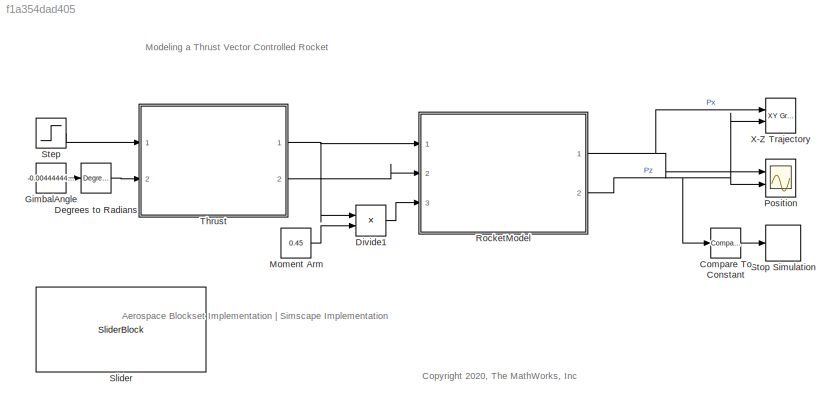
MODEL slx_f1a354dad405
KIND model
CONFIG AbsTol = auto
CONFIG EnableMultiTasking = off
CONFIG FixedStep = auto
CONFIG MaxStep = auto
CONFIG MinStep = auto
CONFIG PostLoadFcn = VSS_MODE = 0;
CONFIG RelTol = 1e-3
CONFIG SampleTimeConstraint = Unconstrained
CONFIG SolverName = VariableStepAuto
CONFIG StartTime = 0.0
CONFIG StopTime = 10
BLOCK [Reference] Compare To Constant  REF=simulink/Logic and Bit
Operations/Compare
To Constant
  Ports = [1, 1]
  SourceBlock = simulink/Logic and Bit\nOperations/Compare\nTo Constant
  SourceProductBaseCode = SL
  SourceType = Compare To Constant
BLOCK [Reference] Degrees to Radians  REF=simulink_extras/Transformations/Degrees to
Radians
  Ports = [1, 1]
  SourceBlock = simulink_extras/Transformations/Degrees to\nRadians
  SourceProductBaseCode = SL
  SourceType = DegreesToRadians
BLOCK [Product] Divide1
  Inputs = **
  Ports = [2, 1]
BLOCK [Constant] GimbalAngle
  Value = -0.004444444444444473
BLOCK [Constant] Moment Arm 
  Value = 0.45
BLOCK [Scope] Position
  Floating = off
  NumInputPorts = 2
  Ports = [2]
  ScopeSpecificationString = Simulink.scopes.TimeScopeBlockCfg('CurrentConfiguration', extmgr.ConfigurationSet(extmgr.Configuration('Core','General UI',true),extmgr.Configuration('Core','Source UI',true),extmgr.Configuration('Sources','WiredSimulink',true,'DataLoggingVariableName','ScopeData2'),extmgr.Configuration('Visuals','Time Domain',true,'SerializedDisplays',{struct('MinYLimReal','-2.63498','MaxYLimReal','23.71478','YLa...<+2088ch>
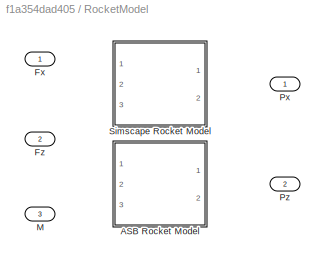
BLOCK [SubSystem] RocketModel
  Ports = [3, 2]
  RequestExecContextInheritance = off
  Variant = on
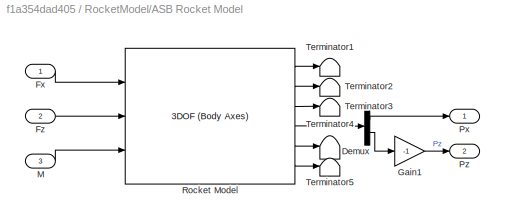
BLOCK [SubSystem] RocketModel/ASB Rocket Model
  Ports = [3, 2]
  RequestExecContextInheritance = off
  VariantControl = VSS_MODE == 0
BLOCK [Demux] RocketModel/ASB Rocket Model/Demux
  Outputs = 2
  Ports = [1, 2]
BLOCK [Inport] RocketModel/ASB Rocket Model/Fx
BLOCK [Inport] RocketModel/ASB Rocket Model/Fz
  Port = 2
BLOCK [Gain] RocketModel/ASB Rocket Model/Gain1
  Gain = -1
BLOCK [Inport] RocketModel/ASB Rocket Model/M
  Port = 3
BLOCK [Outport] RocketModel/ASB Rocket Model/Px
BLOCK [Outport] RocketModel/ASB Rocket Model/Pz
  Port = 2
BLOCK [Reference] RocketModel/ASB Rocket Model/Rocket Model  REF=shared3dof/3DOF (Body Axes)
  Ports = [3, 6]
  SourceBlock = shared3dof/3DOF (Body Axes)
  SourceProductBaseCode = AE,PW,MT,UV,VE,VP
  SourceType = 3DOF EoM
BLOCK [Terminator] RocketModel/ASB Rocket Model/Terminator1
BLOCK [Terminator] RocketModel/ASB Rocket Model/Terminator2
BLOCK [Terminator] RocketModel/ASB Rocket Model/Terminator3
BLOCK [Terminator] RocketModel/ASB Rocket Model/Terminator4
BLOCK [Terminator] RocketModel/ASB Rocket Model/Terminator5
BLOCK [Inport] RocketModel/Fx 
BLOCK [Inport] RocketModel/Fz
  Port = 2
BLOCK [Inport] RocketModel/M
  Port = 3
BLOCK [Outport] RocketModel/Px
BLOCK [Outport] RocketModel/Pz 
  Port = 2
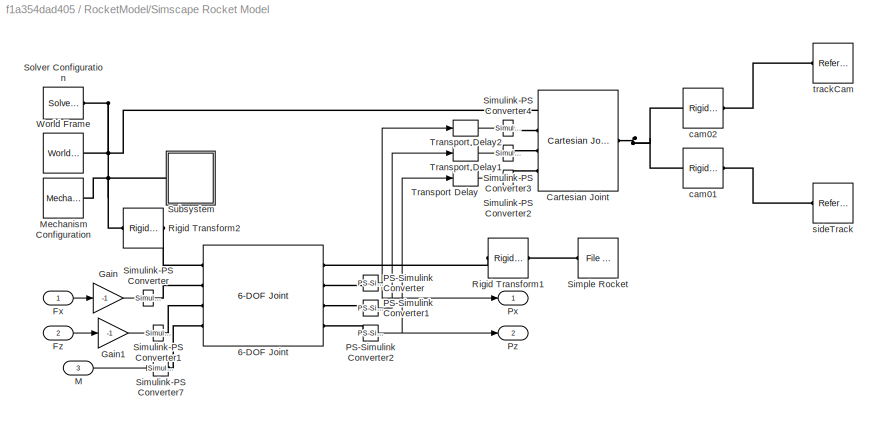
BLOCK [SubSystem] RocketModel/Simscape Rocket Model
  Ports = [3, 2]
  RequestExecContextInheritance = off
  VariantControl = VSS_MODE == 1
BLOCK [Reference] RocketModel/Simscape Rocket Model/6-DOF Joint  REF=sm_lib/Joints/6-DOF Joint
  Ports = [0, 0, 0, 0, 0, 4, 4]
  SourceBlock = sm_lib/Joints/6-DOF Joint
  SourceProductBaseCode = MS
  SourceType = 6-DOF Joint
BLOCK [Reference] RocketModel/Simscape Rocket Model/Cartesian Joint  REF=sm_lib/Joints/Cartesian
Joint
  Ports = [0, 0, 0, 0, 0, 4, 1]
  SourceBlock = sm_lib/Joints/Cartesian\nJoint
  SourceProductBaseCode = MS
  SourceType = Cartesian\nJoint
BLOCK [Inport] RocketModel/Simscape Rocket Model/Fx
BLOCK [Inport] RocketModel/Simscape Rocket Model/Fz
  Port = 2
BLOCK [Gain] RocketModel/Simscape Rocket Model/Gain
  Gain = -1
BLOCK [Gain] RocketModel/Simscape Rocket Model/Gain1
  Gain = -1
BLOCK [Inport] RocketModel/Simscape Rocket Model/M
  Port = 3
BLOCK [Reference] RocketModel/Simscape Rocket Model/Mechanism Configuration  REF=sm_lib/Utilities/Mechanism
Configuration
  Ports = [0, 0, 0, 0, 0, 0, 1]
  SourceBlock = sm_lib/Utilities/Mechanism\nConfiguration
  SourceProductBaseCode = MS
  SourceType = Mechanism\nConfiguration
BLOCK [Reference] RocketModel/Simscape Rocket Model/PS-Simulink Converter  REF=nesl_utility/PS-Simulink
Converter
  Ports = [0, 1, 0, 0, 0, 1]
  SourceBlock = nesl_utility/PS-Simulink\nConverter
  SourceProductBaseCode = SS
  SourceType = PS-Simulink\nConverter
BLOCK [Reference] RocketModel/Simscape Rocket Model/PS-Simulink Converter1  REF=nesl_utility/PS-Simulink
Converter
  Ports = [0, 1, 0, 0, 0, 1]
  SourceBlock = nesl_utility/PS-Simulink\nConverter
  SourceProductBaseCode = SS
  SourceType = PS-Simulink\nConverter
BLOCK [Reference] RocketModel/Simscape Rocket Model/PS-Simulink Converter2  REF=nesl_utility/PS-Simulink
Converter
  Ports = [0, 1, 0, 0, 0, 1]
  SourceBlock = nesl_utility/PS-Simulink\nConverter
  SourceProductBaseCode = SS
  SourceType = PS-Simulink\nConverter
BLOCK [Outport] RocketModel/Simscape Rocket Model/Px
BLOCK [Outport] RocketModel/Simscape Rocket Model/Pz
  Port = 2
BLOCK [Reference] RocketModel/Simscape Rocket Model/Rigid Transform1  REF=sm_lib/Frames and
Transforms/Rigid
Transform
  NameLocation = top
  Ports = [0, 0, 0, 0, 0, 1, 1]
  SourceBlock = sm_lib/Frames and\nTransforms/Rigid\nTransform
  SourceProductBaseCode = MS
  SourceType = Rigid\nTransform
BLOCK [Reference] RocketModel/Simscape Rocket Model/Rigid Transform2  REF=sm_lib/Frames and
Transforms/Rigid
Transform
  NameLocation = top
  Ports = [0, 0, 0, 0, 0, 1, 1]
  SourceBlock = sm_lib/Frames and\nTransforms/Rigid\nTransform
  SourceProductBaseCode = MS
  SourceType = Rigid\nTransform
BLOCK [Reference] RocketModel/Simscape Rocket Model/Simple Rocket  REF=sm_lib/Body Elements/File Solid
  NameLocation = top
  Ports = [0, 0, 0, 0, 0, 0, 1]
  SourceBlock = sm_lib/Body Elements/File Solid
  SourceProductBaseCode = MS
  SourceType = File Solid
BLOCK [Reference] RocketModel/Simscape Rocket Model/Simulink-PS Converter  REF=nesl_utility/Simulink-PS
Converter
  Ports = [1, 0, 0, 0, 0, 0, 1]
  SourceBlock = nesl_utility/Simulink-PS\nConverter
  SourceProductBaseCode = SS
  SourceType = Simulink-PS\nConverter
BLOCK [Reference] RocketModel/Simscape Rocket Model/Simulink-PS Converter1  REF=nesl_utility/Simulink-PS
Converter
  Ports = [1, 0, 0, 0, 0, 0, 1]
  SourceBlock = nesl_utility/Simulink-PS\nConverter
  SourceProductBaseCode = SS
  SourceType = Simulink-PS\nConverter
BLOCK [Reference] RocketModel/Simscape Rocket Model/Simulink-PS Converter2  REF=nesl_utility/Simulink-PS
Converter
  Ports = [1, 0, 0, 0, 0, 0, 1]
  SourceBlock = nesl_utility/Simulink-PS\nConverter
  SourceProductBaseCode = SS
  SourceType = Simulink-PS\nConverter
BLOCK [Reference] RocketModel/Simscape Rocket Model/Simulink-PS Converter3  REF=nesl_utility/Simulink-PS
Converter
  Ports = [1, 0, 0, 0, 0, 0, 1]
  SourceBlock = nesl_utility/Simulink-PS\nConverter
  SourceProductBaseCode = SS
  SourceType = Simulink-PS\nConverter
BLOCK [Reference] RocketModel/Simscape Rocket Model/Simulink-PS Converter4  REF=nesl_utility/Simulink-PS
Converter
  Ports = [1, 0, 0, 0, 0, 0, 1]
  SourceBlock = nesl_utility/Simulink-PS\nConverter
  SourceProductBaseCode = SS
  SourceType = Simulink-PS\nConverter
BLOCK [Reference] RocketModel/Simscape Rocket Model/Simulink-PS Converter7  REF=nesl_utility/Simulink-PS
Converter
  Ports = [1, 0, 0, 0, 0, 0, 1]
  SourceBlock = nesl_utility/Simulink-PS\nConverter
  SourceProductBaseCode = SS
  SourceType = Simulink-PS\nConverter
BLOCK [Reference] RocketModel/Simscape Rocket Model/Solver Configuration  REF=nesl_utility/Solver
Configuration
  Ports = [0, 0, 0, 0, 0, 0, 1]
  SourceBlock = nesl_utility/Solver\nConfiguration
  SourceProductBaseCode = SS
  SourceType = Solver\nConfiguration
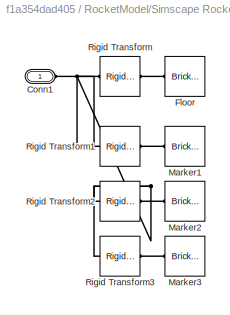
BLOCK [SubSystem] RocketModel/Simscape Rocket Model/Subsystem
  Ports = [0, 0, 0, 0, 0, 1]
  RequestExecContextInheritance = off
BLOCK [PMIOPort] RocketModel/Simscape Rocket Model/Subsystem/Conn1
  Side = Left
BLOCK [Reference] RocketModel/Simscape Rocket Model/Subsystem/Floor  REF=sm_lib/Body Elements/Brick Solid
  NameLocation = top
  Ports = [0, 0, 0, 0, 0, 0, 1]
  SourceBlock = sm_lib/Body Elements/Brick Solid
  SourceProductBaseCode = MS
  SourceType = Brick Solid
BLOCK [Reference] RocketModel/Simscape Rocket Model/Subsystem/Marker1  REF=sm_lib/Body Elements/Brick Solid
  NameLocation = top
  Ports = [0, 0, 0, 0, 0, 0, 1]
  SourceBlock = sm_lib/Body Elements/Brick Solid
  SourceProductBaseCode = MS
  SourceType = Brick Solid
BLOCK [Reference] RocketModel/Simscape Rocket Model/Subsystem/Marker2  REF=sm_lib/Body Elements/Brick Solid
  NameLocation = top
  Ports = [0, 0, 0, 0, 0, 0, 1]
  SourceBlock = sm_lib/Body Elements/Brick Solid
  SourceProductBaseCode = MS
  SourceType = Brick Solid
BLOCK [Reference] RocketModel/Simscape Rocket Model/Subsystem/Marker3  REF=sm_lib/Body Elements/Brick Solid
  NameLocation = top
  Ports = [0, 0, 0, 0, 0, 0, 1]
  SourceBlock = sm_lib/Body Elements/Brick Solid
  SourceProductBaseCode = MS
  SourceType = Brick Solid
BLOCK [Reference] RocketModel/Simscape Rocket Model/Subsystem/Rigid Transform  REF=sm_lib/Frames and
Transforms/Rigid
Transform
  Ports = [0, 0, 0, 0, 0, 1, 1]
  SourceBlock = sm_lib/Frames and\nTransforms/Rigid\nTransform
  SourceProductBaseCode = MS
  SourceType = Rigid\nTransform
BLOCK [Reference] RocketModel/Simscape Rocket Model/Subsystem/Rigid Transform1  REF=sm_lib/Frames and
Transforms/Rigid
Transform
  Ports = [0, 0, 0, 0, 0, 1, 1]
  SourceBlock = sm_lib/Frames and\nTransforms/Rigid\nTransform
  SourceProductBaseCode = MS
  SourceType = Rigid\nTransform
BLOCK [Reference] RocketModel/Simscape Rocket Model/Subsystem/Rigid Transform2  REF=sm_lib/Frames and
Transforms/Rigid
Transform
  Ports = [0, 0, 0, 0, 0, 1, 1]
  SourceBlock = sm_lib/Frames and\nTransforms/Rigid\nTransform
  SourceProductBaseCode = MS
  SourceType = Rigid\nTransform
BLOCK [Reference] RocketModel/Simscape Rocket Model/Subsystem/Rigid Transform3  REF=sm_lib/Frames and
Transforms/Rigid
Transform
  Ports = [0, 0, 0, 0, 0, 1, 1]
  SourceBlock = sm_lib/Frames and\nTransforms/Rigid\nTransform
  SourceProductBaseCode = MS
  SourceType = Rigid\nTransform
BLOCK [TransportDelay] RocketModel/Simscape Rocket Model/Transport Delay
  BufferSize = 100
  DelayTime = 0.01
  Ports = [1, 1]
BLOCK [TransportDelay] RocketModel/Simscape Rocket Model/Transport Delay1
  BufferSize = 100
  DelayTime = 0.01
  Ports = [1, 1]
BLOCK [TransportDelay] RocketModel/Simscape Rocket Model/Transport Delay2
  BufferSize = 100
  DelayTime = 0.01
  Ports = [1, 1]
BLOCK [Reference] RocketModel/Simscape Rocket Model/World Frame  REF=sm_lib/Frames and
Transforms/World Frame
  Ports = [0, 0, 0, 0, 0, 0, 1]
  SourceBlock = sm_lib/Frames and\nTransforms/World Frame
  SourceProductBaseCode = MS
  SourceType = World Frame
BLOCK [Reference] RocketModel/Simscape Rocket Model/cam01  REF=sm_lib/Frames and
Transforms/Rigid
Transform
  Ports = [0, 0, 0, 0, 0, 1, 1]
  SourceBlock = sm_lib/Frames and\nTransforms/Rigid\nTransform
  SourceProductBaseCode = MS
  SourceType = Rigid\nTransform
BLOCK [Reference] RocketModel/Simscape Rocket Model/cam02  REF=sm_lib/Frames and
Transforms/Rigid
Transform
  Ports = [0, 0, 0, 0, 0, 1, 1]
  SourceBlock = sm_lib/Frames and\nTransforms/Rigid\nTransform
  SourceProductBaseCode = MS
  SourceType = Rigid\nTransform
BLOCK [Reference] RocketModel/Simscape Rocket Model/sideTrack  REF=sm_lib/Frames and
Transforms/Reference
Frame
  Ports = [0, 0, 0, 0, 0, 0, 1]
  SourceBlock = sm_lib/Frames and\nTransforms/Reference\nFrame
  SourceProductName = Multibody
  SourceType = Reference\nFrame
BLOCK [Reference] RocketModel/Simscape Rocket Model/trackCam  REF=sm_lib/Frames and
Transforms/Reference
Frame
  Ports = [0, 0, 0, 0, 0, 0, 1]
  SourceBlock = sm_lib/Frames and\nTransforms/Reference\nFrame
  SourceProductName = Multibody
  SourceType = Reference\nFrame
BLOCK [SliderBlock] Slider
  ScaleMax = 1
  ScaleMin = -1
  TickInterval = 1
BLOCK [Step] Step
  After = 0
  Before = -15
  SampleTime = 0
  Time = 2
BLOCK [Stop] Stop Simulation
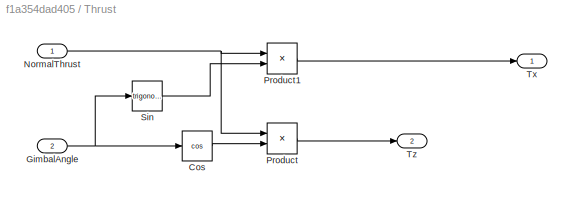
BLOCK [SubSystem] Thrust
  Ports = [2, 2]
  RequestExecContextInheritance = off
BLOCK [Trigonometry] Thrust/Cos
  Operator = cos
  Ports = [1, 1]
BLOCK [Inport] Thrust/GimbalAngle
  Port = 2
BLOCK [Inport] Thrust/NormalThrust
BLOCK [Product] Thrust/Product
  Ports = [2, 1]
  RndMeth = Zero
BLOCK [Product] Thrust/Product1
  Ports = [2, 1]
  RndMeth = Zero
BLOCK [Trigonometry] Thrust/Sin
  Ports = [1, 1]
BLOCK [Outport] Thrust/Tx
BLOCK [Outport] Thrust/Tz
  Port = 2
BLOCK [Reference] X-Z Trajectory  REF=simulink/Sinks/XY Graph
  Ports = [2]
  SourceBlock = simulink/Sinks/XY Graph
  SourceProductBaseCode = SL
  SourceType = XY scope.
ANNOTATION (root): Aerospace Blockset Implementation | Simscape Implementation
ANNOTATION (root): Modeling a Thrust Vector Controlled Rocket
ANNOTATION (root): <copyright redacted>
LINE Compare To Constant:1 -> Stop Simulation:1
LINE Degrees to Radians:1 -> Thrust:2
LINE Divide1:1 -> RocketModel:3
LINE GimbalAngle:1 -> Degrees to Radians:1
LINE Moment Arm :1 -> Divide1:2
LINE RocketModel/ASB Rocket Model/Demux:1 -> RocketModel/ASB Rocket Model/Px:1
LINE RocketModel/ASB Rocket Model/Demux:2 -> RocketModel/ASB Rocket Model/Gain1:1
LINE RocketModel/ASB Rocket Model/Fx:1 -> RocketModel/ASB Rocket Model/Rocket Model:1
LINE RocketModel/ASB Rocket Model/Fz:1 -> RocketModel/ASB Rocket Model/Rocket Model:2
LINE RocketModel/ASB Rocket Model/Gain1:1 -> RocketModel/ASB Rocket Model/Pz:1
LINE RocketModel/ASB Rocket Model/M:1 -> RocketModel/ASB Rocket Model/Rocket Model:3
LINE RocketModel/ASB Rocket Model/Rocket Model:1 -> RocketModel/ASB Rocket Model/Terminator1:1
LINE RocketModel/ASB Rocket Model/Rocket Model:2 -> RocketModel/ASB Rocket Model/Terminator2:1
LINE RocketModel/ASB Rocket Model/Rocket Model:3 -> RocketModel/ASB Rocket Model/Terminator3:1
LINE RocketModel/ASB Rocket Model/Rocket Model:4 -> RocketModel/ASB Rocket Model/Demux:1
LINE RocketModel/ASB Rocket Model/Rocket Model:5 -> RocketModel/ASB Rocket Model/Terminator4:1
LINE RocketModel/ASB Rocket Model/Rocket Model:6 -> RocketModel/ASB Rocket Model/Terminator5:1
LINE RocketModel/Simscape Rocket Model/Fx:1 -> RocketModel/Simscape Rocket Model/Gain:1
LINE RocketModel/Simscape Rocket Model/Fz:1 -> RocketModel/Simscape Rocket Model/Gain1:1
LINE RocketModel/Simscape Rocket Model/Gain1:1 -> RocketModel/Simscape Rocket Model/Simulink-PS Converter1:1
LINE RocketModel/Simscape Rocket Model/Gain:1 -> RocketModel/Simscape Rocket Model/Simulink-PS Converter:1
LINE RocketModel/Simscape Rocket Model/M:1 -> RocketModel/Simscape Rocket Model/Simulink-PS Converter7:1
LINE RocketModel/Simscape Rocket Model/PS-Simulink Converter1:1 -> RocketModel/Simscape Rocket Model/Transport Delay1:1
NET RocketModel/Simscape Rocket Model/PS-Simulink Converter2:1 -> RocketModel/Simscape Rocket Model/Pz:1, RocketModel/Simscape Rocket Model/Transport Delay:1
NET RocketModel/Simscape Rocket Model/PS-Simulink Converter:1 -> RocketModel/Simscape Rocket Model/Px:1, RocketModel/Simscape Rocket Model/Transport Delay2:1
LINE RocketModel/Simscape Rocket Model/Transport Delay1:1 -> RocketModel/Simscape Rocket Model/Simulink-PS Converter3:1
LINE RocketModel/Simscape Rocket Model/Transport Delay2:1 -> RocketModel/Simscape Rocket Model/Simulink-PS Converter4:1
LINE RocketModel/Simscape Rocket Model/Transport Delay:1 -> RocketModel/Simscape Rocket Model/Simulink-PS Converter2:1
NET RocketModel:1 -> Position:1, X-Z Trajectory:1
NET RocketModel:2 -> Compare To Constant:1, Position:2, X-Z Trajectory:2
LINE Step:1 -> Thrust:1
LINE Thrust/Cos:1 -> Thrust/Product:2
NET Thrust/GimbalAngle:1 -> Thrust/Cos:1, Thrust/Sin:1
NET Thrust/NormalThrust:1 -> Thrust/Product1:1, Thrust/Product:1
LINE Thrust/Product1:1 -> Thrust/Tx:1
LINE Thrust/Product:1 -> Thrust/Tz:1
LINE Thrust/Sin:1 -> Thrust/Product1:2
NET Thrust:1 -> Divide1:1, RocketModel:1
LINE Thrust:2 -> RocketModel:2
PLINE RocketModel/Simscape Rocket Model/6-DOF Joint:LConn1 -- RocketModel/Simscape Rocket Model/Rigid Transform2:LConn1
PLINE RocketModel/Simscape Rocket Model/6-DOF Joint:LConn2 -- RocketModel/Simscape Rocket Model/Simulink-PS Converter:RConn1
PLINE RocketModel/Simscape Rocket Model/6-DOF Joint:LConn3 -- RocketModel/Simscape Rocket Model/Simulink-PS Converter1:RConn1
PLINE RocketModel/Simscape Rocket Model/6-DOF Joint:LConn4 -- RocketModel/Simscape Rocket Model/Simulink-PS Converter7:RConn1
PLINE RocketModel/Simscape Rocket Model/6-DOF Joint:RConn1 -- RocketModel/Simscape Rocket Model/Rigid Transform1:RConn1
PLINE RocketModel/Simscape Rocket Model/6-DOF Joint:RConn2 -- RocketModel/Simscape Rocket Model/PS-Simulink Converter:LConn1
PLINE RocketModel/Simscape Rocket Model/6-DOF Joint:RConn3 -- RocketModel/Simscape Rocket Model/PS-Simulink Converter1:LConn1
PLINE RocketModel/Simscape Rocket Model/6-DOF Joint:RConn4 -- RocketModel/Simscape Rocket Model/PS-Simulink Converter2:LConn1
PNET net1: RocketModel/Simscape Rocket Model/Cartesian Joint:LConn1 -- RocketModel/Simscape Rocket Model/Mechanism Configuration:RConn1 -- RocketModel/Simscape Rocket Model/Rigid Transform2:RConn1 -- RocketModel/Simscape Rocket Model/Solver Configuration:RConn1 -- RocketModel/Simscape Rocket Model/Subsystem:LConn1 -- RocketModel/Simscape Rocket Model/World Frame:RConn1
PLINE RocketModel/Simscape Rocket Model/Cartesian Joint:LConn2 -- RocketModel/Simscape Rocket Model/Simulink-PS Converter4:RConn1
PLINE RocketModel/Simscape Rocket Model/Cartesian Joint:LConn3 -- RocketModel/Simscape Rocket Model/Simulink-PS Converter3:RConn1
PLINE RocketModel/Simscape Rocket Model/Cartesian Joint:LConn4 -- RocketModel/Simscape Rocket Model/Simulink-PS Converter2:RConn1
PNET net2: RocketModel/Simscape Rocket Model/Cartesian Joint:RConn1 -- RocketModel/Simscape Rocket Model/cam01:LConn1 -- RocketModel/Simscape Rocket Model/cam02:LConn1
PLINE RocketModel/Simscape Rocket Model/Rigid Transform1:LConn1 -- RocketModel/Simscape Rocket Model/Simple Rocket:RConn1
PNET net3: RocketModel/Simscape Rocket Model/Subsystem/Conn1:RConn1 -- RocketModel/Simscape Rocket Model/Subsystem/Rigid Transform1:LConn1 -- RocketModel/Simscape Rocket Model/Subsystem/Rigid Transform2:LConn1 -- RocketModel/Simscape Rocket Model/Subsystem/Rigid Transform3:LConn1 -- RocketModel/Simscape Rocket Model/Subsystem/Rigid Transform:LConn1
PLINE RocketModel/Simscape Rocket Model/Subsystem/Floor:RConn1 -- RocketModel/Simscape Rocket Model/Subsystem/Rigid Transform:RConn1
PLINE RocketModel/Simscape Rocket Model/Subsystem/Marker1:RConn1 -- RocketModel/Simscape Rocket Model/Subsystem/Rigid Transform1:RConn1
PLINE RocketModel/Simscape Rocket Model/Subsystem/Marker2:RConn1 -- RocketModel/Simscape Rocket Model/Subsystem/Rigid Transform2:RConn1
PLINE RocketModel/Simscape Rocket Model/Subsystem/Marker3:RConn1 -- RocketModel/Simscape Rocket Model/Subsystem/Rigid Transform3:RConn1
PLINE RocketModel/Simscape Rocket Model/cam01:RConn1 -- RocketModel/Simscape Rocket Model/sideTrack:RConn1
PLINE RocketModel/Simscape Rocket Model/cam02:RConn1 -- RocketModel/Simscape Rocket Model/trackCam:RConn1
note: NET lines group one-source signal fan-out (src -> all destinations, sorted); 1:1 wires keep LINE; PNET lines group multi-terminal physical nets as a canonical sorted terminal list (undirected conserving connections); 2-terminal nets keep the pairwise PLINE form
